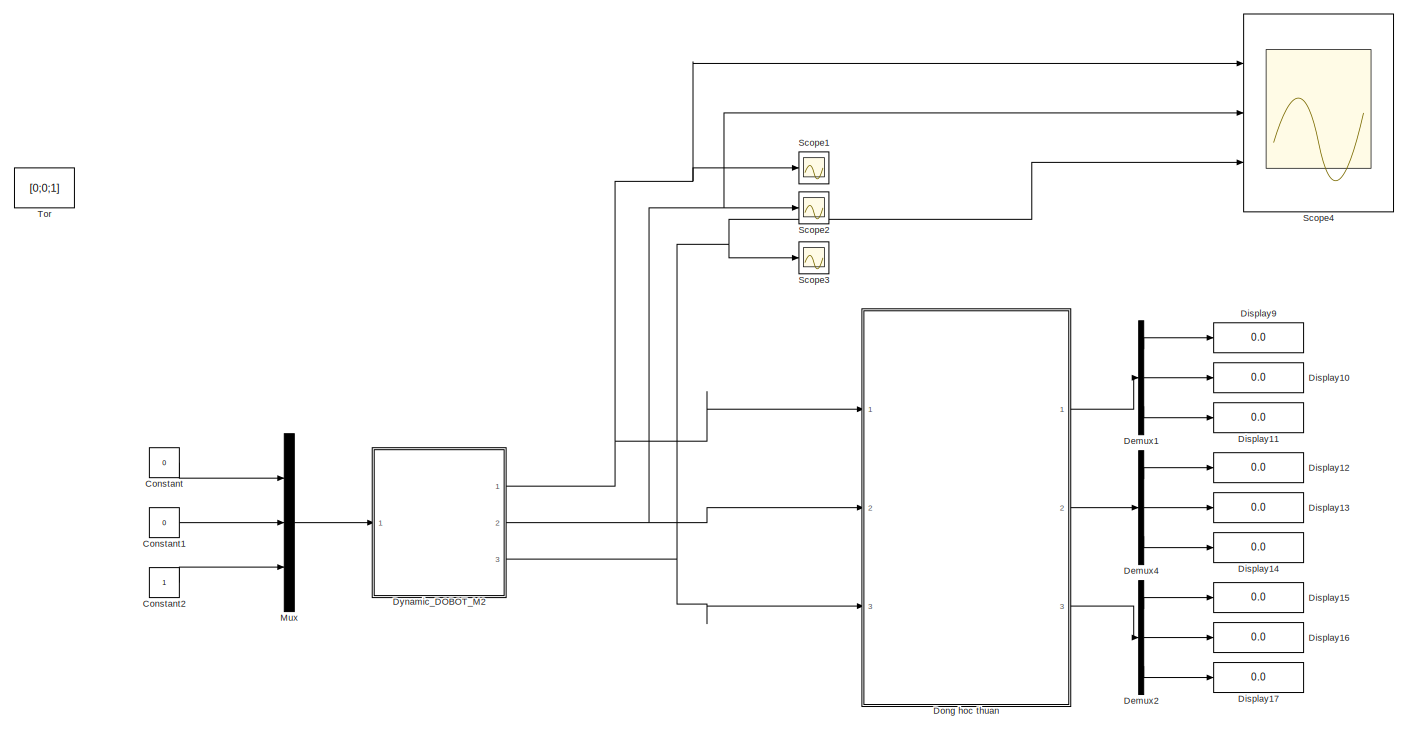
[diagram: root canvas - part 1/2, left side, full height]
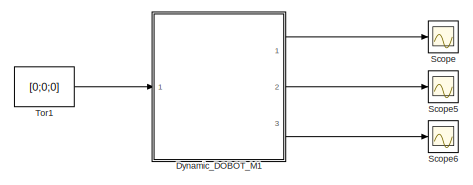
[diagram: root canvas - part 2/2, middle right region]
MODEL slx_e09cdfc22ea2
KIND model
CONFIG AbsTol = auto
CONFIG EnableMultiTasking = off
CONFIG FixedStep = 0.01
CONFIG MaxStep = auto
CONFIG MinStep = auto
CONFIG RelTol = 1e-3
CONFIG SampleTimeConstraint = Unconstrained
CONFIG SolverName = FixedStepAuto
CONFIG StartTime = 0.0
CONFIG StopTime = 50
BLOCK [Constant] Constant
  Value = 0
BLOCK [Constant] Constant1
  Value = 0
BLOCK [Constant] Constant2
BLOCK [Demux] Demux1
  Outputs = 3
  Ports = [1, 3]
BLOCK [Demux] Demux2
  Outputs = 3
  Ports = [1, 3]
BLOCK [Demux] Demux4
  Outputs = 3
  Ports = [1, 3]
BLOCK [Display] Display10
  Decimation = 1
  Ports = [1]
BLOCK [Display] Display11
  Decimation = 1
  Ports = [1]
BLOCK [Display] Display12
  Decimation = 1
  Ports = [1]
BLOCK [Display] Display13
  Decimation = 1
  Ports = [1]
BLOCK [Display] Display14
  Decimation = 1
  Ports = [1]
BLOCK [Display] Display15
  Decimation = 1
  Ports = [1]
BLOCK [Display] Display16
  Decimation = 1
  Ports = [1]
BLOCK [Display] Display17
  Decimation = 1
  Ports = [1]
BLOCK [Display] Display9
  Decimation = 1
  Ports = [1]
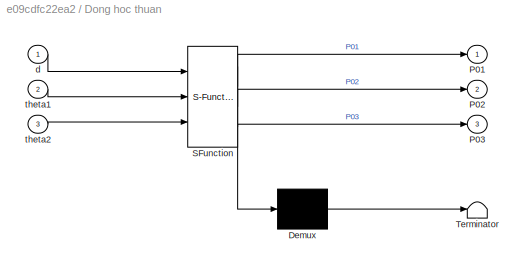
BLOCK [SubSystem] Dong hoc thuan
  ErrorFcn = Stateflow.Translate.translate
  PermitHierarchicalResolution = ExplicitOnly
  Ports = [3, 3]
  RequestExecContextInheritance = off
  SFBlockType = MATLAB Function
  TreatAsAtomicUnit = on
BLOCK [Demux] Dong hoc thuan/ Demux 
  Outputs = 1
  Ports = [1, 1]
BLOCK [S-Function] Dong hoc thuan/ SFunction 
  EnableBusSupport = on
  FunctionName = sf_sfun
  PortCounts = [3 4]
  Ports = [3, 4]
  SFcnIsStateOwnerBlock = off
  SFunctionDeploymentMode = off
  Tag = Stateflow S-Function 1
BLOCK [Terminator] Dong hoc thuan/ Terminator 
BLOCK [Outport] Dong hoc thuan/P01
BLOCK [Outport] Dong hoc thuan/P02
  Port = 2
  VectorParamsAs1DForOutWhenUnconnected = off
BLOCK [Outport] Dong hoc thuan/P03
  Port = 3
BLOCK [Inport] Dong hoc thuan/d
BLOCK [Inport] Dong hoc thuan/theta1
  Port = 2
BLOCK [Inport] Dong hoc thuan/theta2
  Port = 3
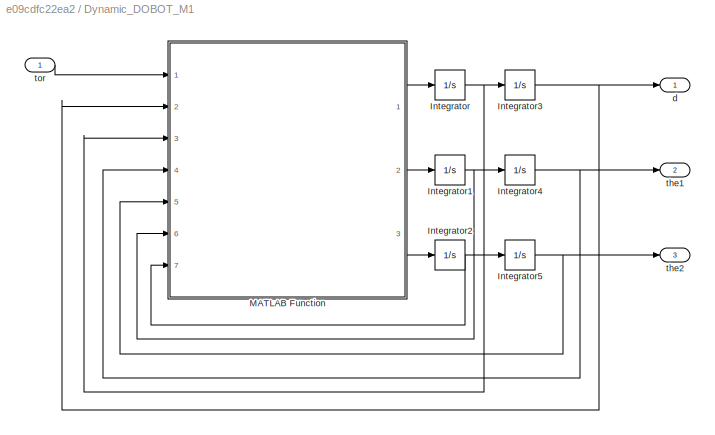
BLOCK [SubSystem] Dynamic_DOBOT_M1
  Ports = [1, 3]
  RequestExecContextInheritance = off
BLOCK [Integrator] Dynamic_DOBOT_M1/Integrator
  Ports = [1, 1]
BLOCK [Integrator] Dynamic_DOBOT_M1/Integrator1
  Ports = [1, 1]
BLOCK [Integrator] Dynamic_DOBOT_M1/Integrator2
  Ports = [1, 1]
BLOCK [Integrator] Dynamic_DOBOT_M1/Integrator3
  Ports = [1, 1]
BLOCK [Integrator] Dynamic_DOBOT_M1/Integrator4
  Ports = [1, 1]
BLOCK [Integrator] Dynamic_DOBOT_M1/Integrator5
  Ports = [1, 1]
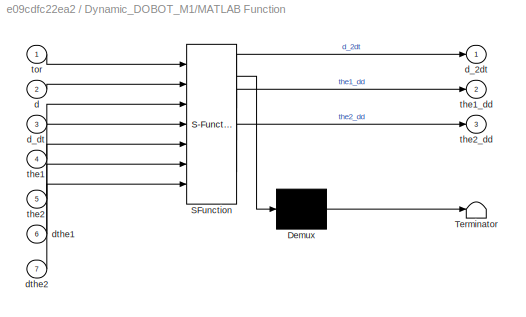
BLOCK [SubSystem] Dynamic_DOBOT_M1/MATLAB Function
  ErrorFcn = Stateflow.Translate.translate
  PermitHierarchicalResolution = ExplicitOnly
  Ports = [7, 3]
  RequestExecContextInheritance = off
  SFBlockType = MATLAB Function
  TreatAsAtomicUnit = on
BLOCK [Demux] Dynamic_DOBOT_M1/MATLAB Function/ Demux 
  Outputs = 1
  Ports = [1, 1]
BLOCK [S-Function] Dynamic_DOBOT_M1/MATLAB Function/ SFunction 
  EnableBusSupport = on
  FunctionName = sf_sfun
  PortCounts = [7 4]
  Ports = [7, 4]
  SFcnIsStateOwnerBlock = off
  SFunctionDeploymentMode = off
  Tag = Stateflow S-Function 3
BLOCK [Terminator] Dynamic_DOBOT_M1/MATLAB Function/ Terminator 
BLOCK [Inport] Dynamic_DOBOT_M1/MATLAB Function/d
  Port = 2
BLOCK [Outport] Dynamic_DOBOT_M1/MATLAB Function/d_2dt
  VectorParamsAs1DForOutWhenUnconnected = off
BLOCK [Inport] Dynamic_DOBOT_M1/MATLAB Function/d_dt
  Port = 3
BLOCK [Inport] Dynamic_DOBOT_M1/MATLAB Function/dthe1
  Port = 6
BLOCK [Inport] Dynamic_DOBOT_M1/MATLAB Function/dthe2
  Port = 7
BLOCK [Inport] Dynamic_DOBOT_M1/MATLAB Function/the1
  Port = 4
BLOCK [Outport] Dynamic_DOBOT_M1/MATLAB Function/the1_dd
  Port = 2
  VectorParamsAs1DForOutWhenUnconnected = off
BLOCK [Inport] Dynamic_DOBOT_M1/MATLAB Function/the2
  Port = 5
BLOCK [Outport] Dynamic_DOBOT_M1/MATLAB Function/the2_dd
  Port = 3
  VectorParamsAs1DForOutWhenUnconnected = off
BLOCK [Inport] Dynamic_DOBOT_M1/MATLAB Function/tor
BLOCK [Outport] Dynamic_DOBOT_M1/d
  VectorParamsAs1DForOutWhenUnconnected = off
BLOCK [Outport] Dynamic_DOBOT_M1/the1
  Port = 2
  VectorParamsAs1DForOutWhenUnconnected = off
BLOCK [Outport] Dynamic_DOBOT_M1/the2
  Port = 3
  VectorParamsAs1DForOutWhenUnconnected = off
BLOCK [Inport] Dynamic_DOBOT_M1/tor
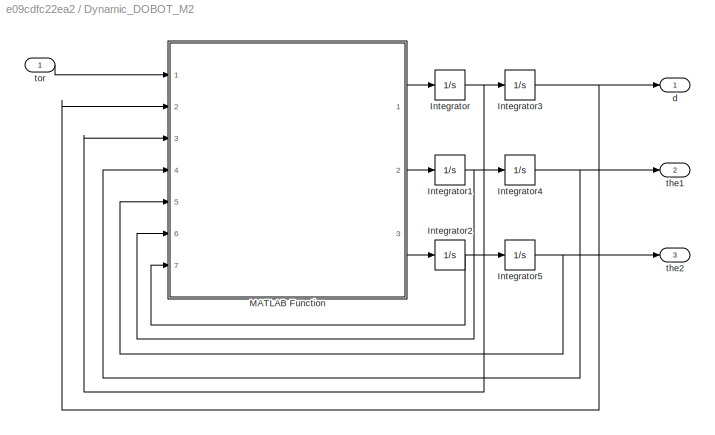
BLOCK [SubSystem] Dynamic_DOBOT_M2
  Ports = [1, 3]
  RequestExecContextInheritance = off
BLOCK [Integrator] Dynamic_DOBOT_M2/Integrator
  Ports = [1, 1]
BLOCK [Integrator] Dynamic_DOBOT_M2/Integrator1
  Ports = [1, 1]
BLOCK [Integrator] Dynamic_DOBOT_M2/Integrator2
  Ports = [1, 1]
BLOCK [Integrator] Dynamic_DOBOT_M2/Integrator3
  Ports = [1, 1]
BLOCK [Integrator] Dynamic_DOBOT_M2/Integrator4
  Ports = [1, 1]
BLOCK [Integrator] Dynamic_DOBOT_M2/Integrator5
  Ports = [1, 1]
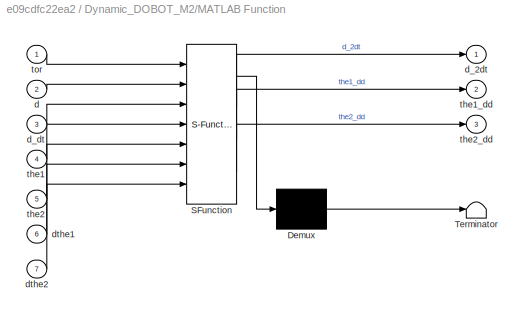
BLOCK [SubSystem] Dynamic_DOBOT_M2/MATLAB Function
  ErrorFcn = Stateflow.Translate.translate
  PermitHierarchicalResolution = ExplicitOnly
  Ports = [7, 3]
  RequestExecContextInheritance = off
  SFBlockType = MATLAB Function
  TreatAsAtomicUnit = on
BLOCK [Demux] Dynamic_DOBOT_M2/MATLAB Function/ Demux 
  Outputs = 1
  Ports = [1, 1]
BLOCK [S-Function] Dynamic_DOBOT_M2/MATLAB Function/ SFunction 
  EnableBusSupport = on
  FunctionName = sf_sfun
  PortCounts = [7 4]
  Ports = [7, 4]
  SFcnIsStateOwnerBlock = off
  SFunctionDeploymentMode = off
  Tag = Stateflow S-Function 2
BLOCK [Terminator] Dynamic_DOBOT_M2/MATLAB Function/ Terminator 
BLOCK [Inport] Dynamic_DOBOT_M2/MATLAB Function/d
  Port = 2
BLOCK [Outport] Dynamic_DOBOT_M2/MATLAB Function/d_2dt
  VectorParamsAs1DForOutWhenUnconnected = off
BLOCK [Inport] Dynamic_DOBOT_M2/MATLAB Function/d_dt
  Port = 3
BLOCK [Inport] Dynamic_DOBOT_M2/MATLAB Function/dthe1
  Port = 6
BLOCK [Inport] Dynamic_DOBOT_M2/MATLAB Function/dthe2
  Port = 7
BLOCK [Inport] Dynamic_DOBOT_M2/MATLAB Function/the1
  Port = 4
BLOCK [Outport] Dynamic_DOBOT_M2/MATLAB Function/the1_dd
  Port = 2
  VectorParamsAs1DForOutWhenUnconnected = off
BLOCK [Inport] Dynamic_DOBOT_M2/MATLAB Function/the2
  Port = 5
BLOCK [Outport] Dynamic_DOBOT_M2/MATLAB Function/the2_dd
  Port = 3
  VectorParamsAs1DForOutWhenUnconnected = off
BLOCK [Inport] Dynamic_DOBOT_M2/MATLAB Function/tor
BLOCK [Outport] Dynamic_DOBOT_M2/d
  VectorParamsAs1DForOutWhenUnconnected = off
BLOCK [Outport] Dynamic_DOBOT_M2/the1
  Port = 2
  VectorParamsAs1DForOutWhenUnconnected = off
BLOCK [Outport] Dynamic_DOBOT_M2/the2
  Port = 3
  VectorParamsAs1DForOutWhenUnconnected = off
BLOCK [Inport] Dynamic_DOBOT_M2/tor
BLOCK [Mux] Mux
  DisplayOption = bar
  Inputs = 3
  Ports = [3, 1]
BLOCK [Scope] Scope
  Floating = off
  NumInputPorts = 1
  Ports = [1]
  ScopeSpecificationString = Simulink.scopes.TimeScopeBlockCfg('CurrentConfiguration', extmgr.ConfigurationSet(extmgr.Configuration('Core','General UI',true),extmgr.Configuration('Core','Source UI',true),extmgr.Configuration('Sources','WiredSimulink',true,'DataLoggingVariableName','ScopeData1'),extmgr.Configuration('Visuals','Time Domain',true,'SerializedDisplays',{struct('MinYLimReal','-13795.3125','MaxYLimReal','1532.8125',...<+1399ch>
BLOCK [Scope] Scope1
  Floating = off
  NumInputPorts = 1
  Ports = [1]
  ScopeSpecificationString = Simulink.scopes.TimeScopeBlockCfg('CurrentConfiguration', extmgr.ConfigurationSet(extmgr.Configuration('Core','General UI',true),extmgr.Configuration('Core','Source UI',true),extmgr.Configuration('Sources','WiredSimulink',true),extmgr.Configuration('Visuals','Time Domain',true,'SerializedDisplays',{struct('MinYLimReal','-13795.3125','MaxYLimReal','1532.8125','YLabelReal','','MinYLimMag','   0.0000...<+1389ch>
BLOCK [Scope] Scope2
  Floating = off
  NumInputPorts = 1
  Ports = [1]
  ScopeSpecificationString = Simulink.scopes.TimeScopeBlockCfg('CurrentConfiguration', extmgr.ConfigurationSet(extmgr.Configuration('Core','General UI',true),extmgr.Configuration('Core','Source UI',true),extmgr.Configuration('Sources','WiredSimulink',true,'DataLoggingVariableName','ScopeData2'),extmgr.Configuration('Visuals','Time Domain',true,'SerializedDisplays',{struct('MinYLimReal','-4.78067','MaxYLimReal','0.53119','YLab...<+1377ch>
BLOCK [Scope] Scope3
  Floating = off
  NumInputPorts = 1
  Ports = [1]
  ScopeSpecificationString = Simulink.scopes.TimeScopeBlockCfg('CurrentConfiguration', extmgr.ConfigurationSet(extmgr.Configuration('Core','General UI',true),extmgr.Configuration('Core','Source UI',true),extmgr.Configuration('Sources','WiredSimulink',true,'DataLoggingVariableName','ScopeData3'),extmgr.Configuration('Visuals','Time Domain',true,'SerializedDisplays',{struct('MinYLimReal','-1.84505','MaxYLimReal','16.60542','YLa...<+1410ch>
BLOCK [Scope] Scope4
  Floating = off
  NumInputPorts = 3
  Ports = [3]
  ScopeSpecificationString = Simulink.scopes.TimeScopeBlockCfg('CurrentConfiguration', extmgr.ConfigurationSet(extmgr.Configuration('Core','General UI',true),extmgr.Configuration('Core','Source UI',true),extmgr.Configuration('Sources','WiredSimulink',true,'DataLoggingVariableName','ScopeData1'),extmgr.Configuration('Visuals','Time Domain',true,'SerializedDisplays',{struct('MinYLimReal','-13797.15755','MaxYLimReal','1549.41792...<+1811ch>
BLOCK [Scope] Scope5
  Floating = off
  NumInputPorts = 1
  Ports = [1]
  ScopeSpecificationString = Simulink.scopes.TimeScopeBlockCfg('CurrentConfiguration', extmgr.ConfigurationSet(extmgr.Configuration('Core','General UI',true),extmgr.Configuration('Core','Source UI',true),extmgr.Configuration('Sources','WiredSimulink',true,'DataLoggingVariableName','ScopeData2'),extmgr.Configuration('Visuals','Time Domain',true,'SerializedDisplays',{struct('MinYLimReal','-1.00000','MaxYLimReal','1.00000','YLab...<+1377ch>
BLOCK [Scope] Scope6
  Floating = off
  NumInputPorts = 1
  Ports = [1]
  ScopeSpecificationString = Simulink.scopes.TimeScopeBlockCfg('CurrentConfiguration', extmgr.ConfigurationSet(extmgr.Configuration('Core','General UI',true),extmgr.Configuration('Core','Source UI',true),extmgr.Configuration('Sources','WiredSimulink',true,'DataLoggingVariableName','ScopeData3'),extmgr.Configuration('Visuals','Time Domain',true,'SerializedDisplays',{struct('MinYLimReal','-1.00000','MaxYLimReal','1.00000','YLab...<+1377ch>
BLOCK [Constant] Tor
  Value = [0;0;1]
BLOCK [Constant] Tor1
  Value = [0;0;0]
LINE Constant1:1 -> Mux:2
LINE Constant2:1 -> Mux:3
LINE Constant:1 -> Mux:1
LINE Demux1:1 -> Display9:1
LINE Demux1:2 -> Display10:1
LINE Demux1:3 -> Display11:1
LINE Demux2:1 -> Display15:1
LINE Demux2:2 -> Display16:1
LINE Demux2:3 -> Display17:1
LINE Demux4:1 -> Display12:1
LINE Demux4:2 -> Display13:1
LINE Demux4:3 -> Display14:1
LINE Dong hoc thuan:1 -> Demux1:1
LINE Dong hoc thuan:2 -> Demux4:1
LINE Dong hoc thuan:3 -> Demux2:1
NET Dynamic_DOBOT_M1/Integrator1:1 -> Dynamic_DOBOT_M1/Integrator4:1, Dynamic_DOBOT_M1/MATLAB Function:6
NET Dynamic_DOBOT_M1/Integrator2:1 -> Dynamic_DOBOT_M1/Integrator5:1, Dynamic_DOBOT_M1/MATLAB Function:7
NET Dynamic_DOBOT_M1/Integrator3:1 -> Dynamic_DOBOT_M1/MATLAB Function:2, Dynamic_DOBOT_M1/d:1
NET Dynamic_DOBOT_M1/Integrator4:1 -> Dynamic_DOBOT_M1/MATLAB Function:4, Dynamic_DOBOT_M1/the1:1
NET Dynamic_DOBOT_M1/Integrator5:1 -> Dynamic_DOBOT_M1/MATLAB Function:5, Dynamic_DOBOT_M1/the2:1
NET Dynamic_DOBOT_M1/Integrator:1 -> Dynamic_DOBOT_M1/Integrator3:1, Dynamic_DOBOT_M1/MATLAB Function:3
LINE Dynamic_DOBOT_M1/MATLAB Function:1 -> Dynamic_DOBOT_M1/Integrator:1
LINE Dynamic_DOBOT_M1/MATLAB Function:2 -> Dynamic_DOBOT_M1/Integrator1:1
LINE Dynamic_DOBOT_M1/MATLAB Function:3 -> Dynamic_DOBOT_M1/Integrator2:1
LINE Dynamic_DOBOT_M1/tor:1 -> Dynamic_DOBOT_M1/MATLAB Function:1
LINE Dynamic_DOBOT_M1:1 -> Scope:1
LINE Dynamic_DOBOT_M1:2 -> Scope5:1
LINE Dynamic_DOBOT_M1:3 -> Scope6:1
NET Dynamic_DOBOT_M2/Integrator1:1 -> Dynamic_DOBOT_M2/Integrator4:1, Dynamic_DOBOT_M2/MATLAB Function:6
NET Dynamic_DOBOT_M2/Integrator2:1 -> Dynamic_DOBOT_M2/Integrator5:1, Dynamic_DOBOT_M2/MATLAB Function:7
NET Dynamic_DOBOT_M2/Integrator3:1 -> Dynamic_DOBOT_M2/MATLAB Function:2, Dynamic_DOBOT_M2/d:1
NET Dynamic_DOBOT_M2/Integrator4:1 -> Dynamic_DOBOT_M2/MATLAB Function:4, Dynamic_DOBOT_M2/the1:1
NET Dynamic_DOBOT_M2/Integrator5:1 -> Dynamic_DOBOT_M2/MATLAB Function:5, Dynamic_DOBOT_M2/the2:1
NET Dynamic_DOBOT_M2/Integrator:1 -> Dynamic_DOBOT_M2/Integrator3:1, Dynamic_DOBOT_M2/MATLAB Function:3
LINE Dynamic_DOBOT_M2/MATLAB Function:1 -> Dynamic_DOBOT_M2/Integrator:1
LINE Dynamic_DOBOT_M2/MATLAB Function:2 -> Dynamic_DOBOT_M2/Integrator1:1
LINE Dynamic_DOBOT_M2/MATLAB Function:3 -> Dynamic_DOBOT_M2/Integrator2:1
LINE Dynamic_DOBOT_M2/tor:1 -> Dynamic_DOBOT_M2/MATLAB Function:1
NET Dynamic_DOBOT_M2:1 -> Dong hoc thuan:1, Scope1:1, Scope4:1
NET Dynamic_DOBOT_M2:2 -> Dong hoc thuan:2, Scope2:1, Scope4:2
NET Dynamic_DOBOT_M2:3 -> Dong hoc thuan:3, Scope3:1, Scope4:3
LINE Mux:1 -> Dynamic_DOBOT_M2:1
LINE Tor1:1 -> Dynamic_DOBOT_M1:1
note: NET lines group one-source signal fan-out (src -> all destinations, sorted); 1:1 wires keep LINE
CHART Dong hoc thuan states=1 transitions=1
  STATE_LABEL 'eML_blk_kernel()'
  STATE_LABEL 'SCRIPT:\nfunction [P01, P02, P03] = Dong_hoc_thuan(d,theta1, theta2)\nL1=1; L2=1; L3=1;  %%cm\nP01 = [0;0;d];\nP02 = [L1;0;d];\nP03 = [L1 + L2*cosd(theta1);\n       L2*sind(theta1);\n       d];\nend'
CHART Dynamic_DOBOT_M2/MATLAB Function states=1 transitions=1
  STATE_LABEL 'eML_blk_kernel()'
  STATE_LABEL 'SCRIPT:\nfunction [d_2dt, the1_dd, the2_dd] = Dynamic(tor,d, d_dt,the1, the2, dthe1, dthe2)\nm1=1; m2=1; m3=1;\nL1=1; L2=1; L3=1;\ng=9.81;\n% MA Tran M\nM11=m1+m2+m3;\nM12=0;\nM13=0;\nM21=0;\nM22=L2*L2*m2+L2*L2*m3+L3*L3*m3+2*L2*L3*m3*cos(the2);\nM23=L3*m3*(L3+L2*cos(the2));\nM31=0;\nM32=L3*m3*(L3+L2*cos(the2));\nM33=L3*L3*m3;\n% Ma tran V\nV11=0; \nV12= -L2*L3*dthe2*m3*sin(the2)*(2*dthe1+dthe2);\nV13= L2*L3*the1*th...<+280ch>'
CHART Dynamic_DOBOT_M1/MATLAB Function states=1 transitions=1
  STATE_LABEL 'eML_blk_kernel()'
  STATE_LABEL 'SCRIPT:\nfunction [d_2dt, the1_dd, the2_dd] = Dynamic(tor,d, d_dt,the1, the2, dthe1, dthe2)\nm1=1; m2=1; m3=1;\nL1=1; L2=1; L3=1;\ng=9.81;\n% MA Tran M\nM11=m1+m2+m3;\nM12=0;\nM13=0;\nM21=0;\nM22=L2*L2*m2+L2*L2*m3+L3*L3*m3+2*L2*L3*m3*cos(the2);\nM23=L3*m3*(L3+L2*cos(the2));\nM31=0;\nM32=L3*m3*(L3+L2*cos(the2));\nM33=L3*L3*m3;\n% Ma tran V\nV11=0; \nV12= -L2*L3*dthe2*m3*sin(the2)*(2*dthe1+dthe2);\nV13= L2*L3*the1*th...<+280ch>'
CHART  states=0 transitions=0
CHART  states=0 transitions=0
CHART  states=0 transitions=0
